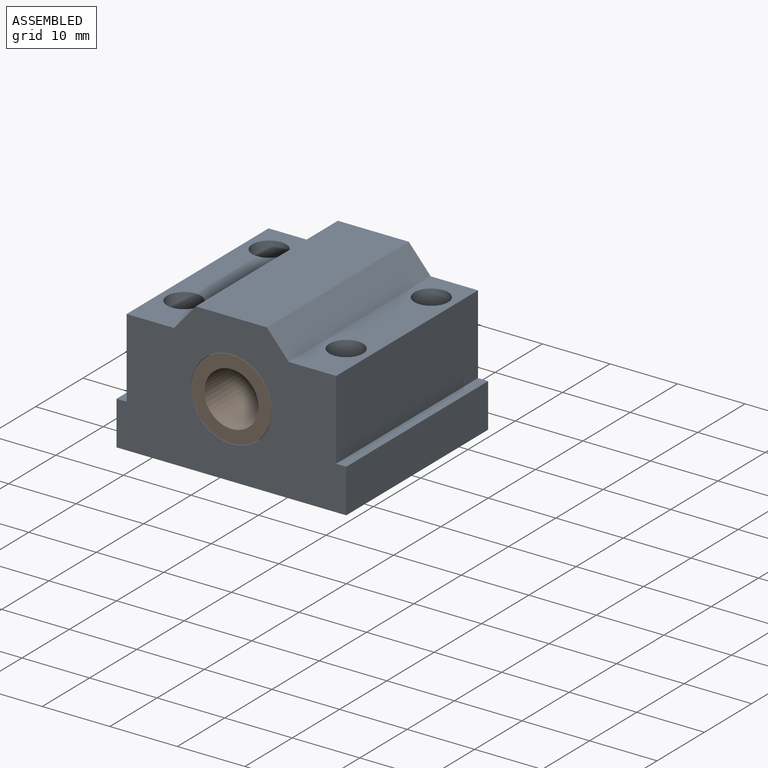
[diagram: assembled view]
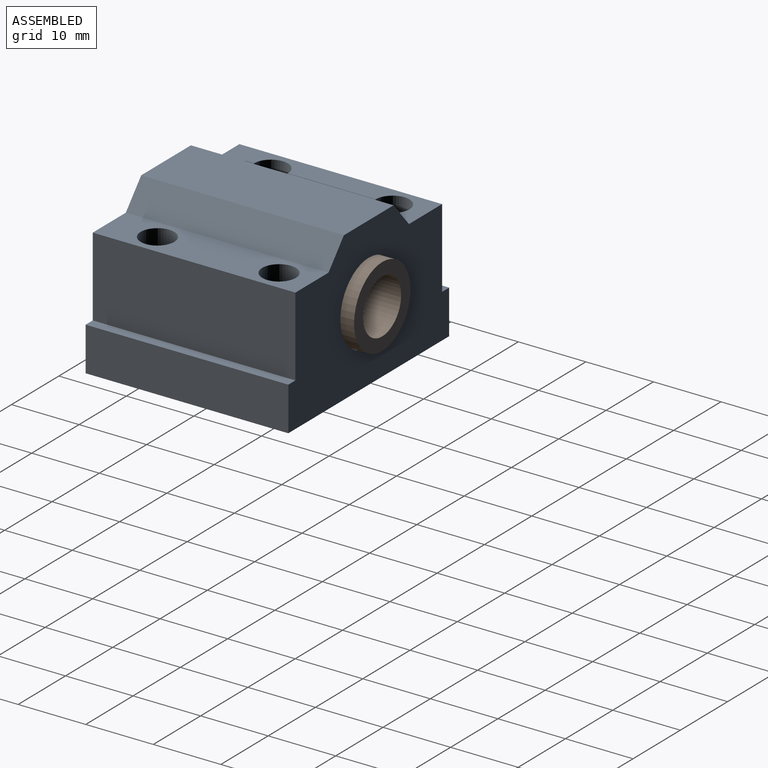
[diagram: assembled view, second angle]
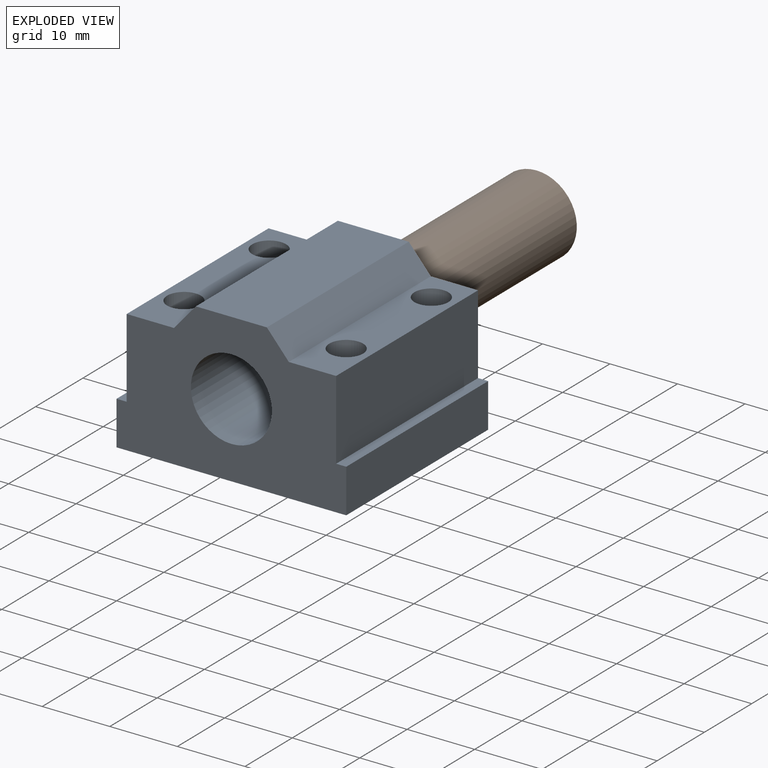
[diagram: exploded view]
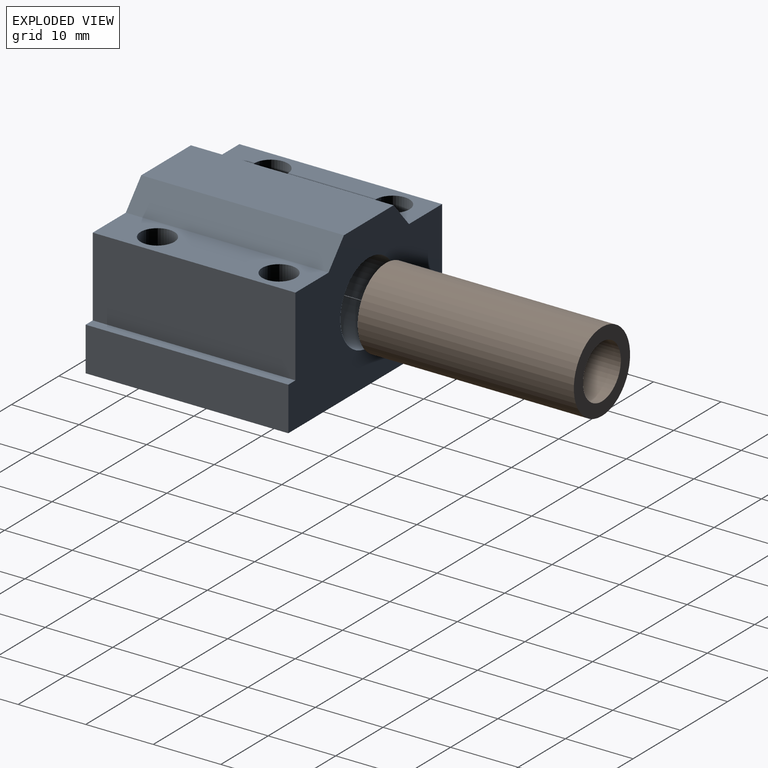
[diagram: exploded view, second angle]
ASSEMBLY  parts=2 mates=3
PART A: 19 faces, bbox 34x30x22 mm
  f0: plane 30x1.5mm, normal (0,0,1), area 45mm2, adj f1,f11,f13,f14
  f1: plane 30x6.5mm, normal (-1,0,0), area 195mm2, adj f0,f2,f13,f14
  f2: plane 34x30mm, normal (0,0,-1), area 941.5mm2, adj f1,f3,f13,f14,f15,f16,f17,f18
  f3: plane 30x6.5mm, normal (1,0,0), area 195mm2, adj f2,f4,f13,f14
  f4: plane 30x1.5mm, normal (0,0,1), area 45mm2, adj f3,f5,f13,f14
  f5: plane 30x11.74mm, normal (1,0,0), area 352.3mm2, adj f4,f6,f13,f14
  f6: plane 30x7mm, normal (0,0,1), area 170.7mm2, adj f5,f7,f13,f14,f17,f18
  f7: plane 30x3.76mm, normal (0.76,0,0.65), area 149mm2, adj f6,f8,f13,f14
  f8: plane 30x10.5mm, normal (0,0,1), area 315mm2, adj f7,f9,f13,f14
  f9: plane 30x3.76mm, normal (-0.76,0,0.65), area 149mm2, adj f8,f10,f13,f14
  f10: plane 30x7mm, normal (0,0,1), area 170.7mm2, adj f9,f11,f13,f14,f15,f16
  f11: plane 30x11.74mm, normal (-1,0,0), area 352.3mm2, adj f0,f10,f13,f14
  f12: cylinder r=6mm len=30mm, axis (0,-1,0), area 1131mm2, adj f13,f14
  f13: plane 34x22mm, normal (0,1,0), area 523.6mm2, adj f0,f1,f2,f3,f4,f5,f6,f7
  f14: plane 34x22mm, normal (0,-1,0), area 523.6mm2, adj f0,f1,f2,f3,f4,f5,f6,f7
  f15: cylinder r=2.5mm len=18.24mm, axis (0,0,-1), area 286.6mm2, adj f2,f10
  f16: cylinder r=2.5mm len=18.24mm, axis (0,0,-1), area 286.6mm2, adj f2,f10
  f17: cylinder r=2.5mm len=18.24mm, axis (0,0,-1), area 286.6mm2, adj f2,f6
  f18: cylinder r=2.5mm len=18.24mm, axis (0,0,-1), area 286.6mm2, adj f2,f6
PART B: 4 faces, bbox 11.9x32x11.9 mm
  f0: cylinder r=4mm len=32mm, axis (0,1,0), area 804.2mm2, adj f2,f3
  f1: cylinder r=5.95mm len=32mm, axis (0,1,0), area 1196.3mm2, adj f2,f3
  f2: plane 11.9x11.9mm, normal (0,-1,0), area 61mm2, adj f0,f1
  f3: plane 11.9x11.9mm, normal (0,1,0), area 61mm2, adj f0,f1
PLACE A t=(-4.26,-1.49,-0.95)mm
PLACE B t=(-11.96,30.51,55.32)mm
MATE fastened B.f1 <-> A.f12  axis (0,-1,0) through (-11.96,-1.49,55.32)mm
MATE planar B.f1 <-> A.f14  axis (0,-1,0) through (-11.96,-1.49,55.32)mm
MATE parallel A.f14 <-> B.f1  axis (0,-1,0) through (-11.96,-1.49,53.89)mm
